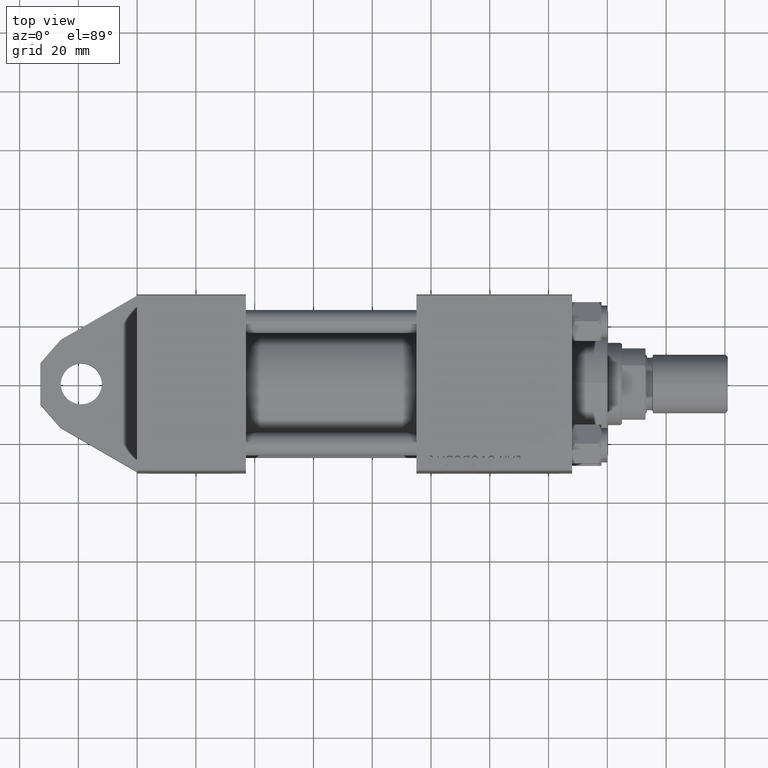
[diagram: clean part render]
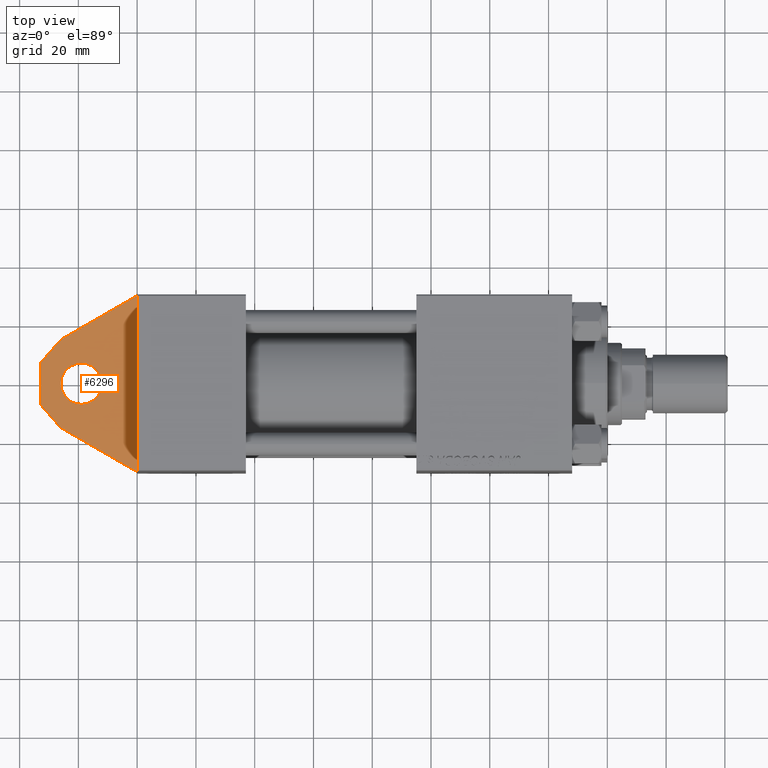
[diagram: same view with one face highlighted and labeled with its STEP entity id]
A machine part, top view. The second image highlights one B-rep face of the part: STEP entity #6296.
In plain terms, the highlighted planar face has unit normal (-0, 0, 1).
Its self-contained STEP definition (entity closure, byte-faithful):
#510 = VERTEX_POINT ( 'NONE', #8216 ) ;
#890 = CARTESIAN_POINT ( 'NONE',  ( 0.000000000000000000, 5.000000000000000000, 29.99999999999999289 ) ) ;
#2163 = CARTESIAN_POINT ( 'NONE',  ( -33.00000000000000000, 5.000000000000000000, -7.000000000000000000 ) ) ;
#2507 = VECTOR ( 'NONE', #37193, 1000.000000000000000 ) ;
#2791 = DIRECTION ( 'NONE',  ( -0.8660254037844361541, -0.000000000000000000, 0.5000000000000043299 ) ) ;
#2825 = EDGE_CURVE ( 'NONE', #34788, #14544, #12285, .T. ) ;
#3042 = FACE_OUTER_BOUND ( 'NONE', #33347, .T. ) ;
#3581 = ORIENTED_EDGE ( 'NONE', *, *, #18817, .T. ) ;
#4411 = EDGE_LOOP ( 'NONE', ( #15034, #29512 ) ) ;
#4566 = ORIENTED_EDGE ( 'NONE', *, *, #38158, .T. ) ;
#6296 = ADVANCED_FACE ( 'NONE', ( #13655, #3042 ), #20943, .T. ) ;
#6570 = CARTESIAN_POINT ( 'NONE',  ( -26.00000000000000355, 5.000000000000000000, -14.98889300106956135 ) ) ;
#7208 = CARTESIAN_POINT ( 'NONE',  ( -26.00000000000000355, 5.000000000000000000, 14.98889300106956135 ) ) ;
#8216 = CARTESIAN_POINT ( 'NONE',  ( -26.00000000000000355, 5.000000000000000000, 14.98889300106956135 ) ) ;
#8423 = LINE ( 'NONE', #11504, #33569 ) ;
#8767 = DIRECTION ( 'NONE',  ( 0.000000000000000000, 0.000000000000000000, 1.000000000000000000 ) ) ;
#8844 = CARTESIAN_POINT ( 'NONE',  ( -26.00000000000000355, 5.000000000000000000, -14.98889300106956135 ) ) ;
#8972 = CIRCLE ( 'NONE', #37534, 7.000000000000000000 ) ;
#9474 = AXIS2_PLACEMENT_3D ( 'NONE', #27118, #15364, #8767 ) ;
#9890 = CARTESIAN_POINT ( 'NONE',  ( 0.000000000000000000, 5.000000000000000000, 0.000000000000000000 ) ) ;
#11504 = CARTESIAN_POINT ( 'NONE',  ( 0.000000000000000000, 5.000000000000000000, 29.99999999999999289 ) ) ;
#12069 = VERTEX_POINT ( 'NONE', #8844 ) ;
#12285 = LINE ( 'NONE', #14870, #2507 ) ;
#13655 = FACE_BOUND ( 'NONE', #4411, .T. ) ;
#14039 = VECTOR ( 'NONE', #26789, 1000.000000000000000 ) ;
#14544 = VERTEX_POINT ( 'NONE', #32923 ) ;
#14870 = CARTESIAN_POINT ( 'NONE',  ( -33.00000000000000000, 5.000000000000000000, -7.000000000000000000 ) ) ;
#15034 = ORIENTED_EDGE ( 'NONE', *, *, #15098, .F. ) ;
#15098 = EDGE_CURVE ( 'NONE', #26618, #18065, #21484, .T. ) ;
#15364 = DIRECTION ( 'NONE',  ( 0.000000000000000000, 1.000000000000000000, 0.000000000000000000 ) ) ;
#16575 = DIRECTION ( 'NONE',  ( 0.000000000000000000, 1.000000000000000000, 0.000000000000000000 ) ) ;
#16891 = EDGE_CURVE ( 'NONE', #38821, #45541, #8423, .T. ) ;
#16935 = LINE ( 'NONE', #6570, #42606 ) ;
#17080 = EDGE_CURVE ( 'NONE', #510, #38821, #29081, .T. ) ;
#17567 = EDGE_CURVE ( 'NONE', #14544, #510, #43307, .T. ) ;
#17993 = ORIENTED_EDGE ( 'NONE', *, *, #2825, .T. ) ;
#18065 = VERTEX_POINT ( 'NONE', #22231 ) ;
#18154 = CARTESIAN_POINT ( 'NONE',  ( -33.00000000000000000, 5.000000000000000000, 7.000000000000000000 ) ) ;
#18817 = EDGE_CURVE ( 'NONE', #45541, #12069, #16935, .T. ) ;
#19948 = AXIS2_PLACEMENT_3D ( 'NONE', #9890, #34353, #27773 ) ;
#20064 = LINE ( 'NONE', #2163, #28722 ) ;
#20943 = PLANE ( 'NONE',  #19948 ) ;
#21484 = CIRCLE ( 'NONE', #9474, 7.000000000000000000 ) ;
#22231 = CARTESIAN_POINT ( 'NONE',  ( -19.00000000000000000, 5.000000000000000000, -7.000000000000000000 ) ) ;
#22409 = ORIENTED_EDGE ( 'NONE', *, *, #17080, .T. ) ;
#22592 = CARTESIAN_POINT ( 'NONE',  ( -19.00000000000000000, 5.000000000000000000, 7.000000000000000000 ) ) ;
#22779 = DIRECTION ( 'NONE',  ( 0.000000000000000000, 0.000000000000000000, -1.000000000000000000 ) ) ;
#23813 = VECTOR ( 'NONE', #32149, 999.9999999999998863 ) ;
#26618 = VERTEX_POINT ( 'NONE', #22592 ) ;
#26789 = DIRECTION ( 'NONE',  ( 0.6590226651366694055, 0.000000000000000000, 0.7521230795795068591 ) ) ;
#27118 = CARTESIAN_POINT ( 'NONE',  ( -19.00000000000000000, 5.000000000000000000, 0.000000000000000000 ) ) ;
#27773 = DIRECTION ( 'NONE',  ( 0.000000000000000000, -0.000000000000000000, 1.000000000000000000 ) ) ;
#28722 = VECTOR ( 'NONE', #32041, 1000.000000000000000 ) ;
#29081 = LINE ( 'NONE', #7208, #23813 ) ;
#29512 = ORIENTED_EDGE ( 'NONE', *, *, #43497, .F. ) ;
#31707 = CARTESIAN_POINT ( 'NONE',  ( -33.00000000000000000, 5.000000000000000000, -7.000000000000000000 ) ) ;
#32041 = DIRECTION ( 'NONE',  ( -0.6590226651366694055, -0.000000000000000000, 0.7521230795795068591 ) ) ;
#32149 = DIRECTION ( 'NONE',  ( 0.8660254037844363761, 0.000000000000000000, 0.5000000000000039968 ) ) ;
#32860 = CARTESIAN_POINT ( 'NONE',  ( 0.000000000000000000, 5.000000000000000000, -30.00000000000000711 ) ) ;
#32923 = CARTESIAN_POINT ( 'NONE',  ( -33.00000000000000000, 5.000000000000000000, 7.000000000000000000 ) ) ;
#33347 = EDGE_LOOP ( 'NONE', ( #35706, #22409, #35535, #3581, #4566, #17993 ) ) ;
#33569 = VECTOR ( 'NONE', #22779, 1000.000000000000000 ) ;
#34353 = DIRECTION ( 'NONE',  ( -0.000000000000000000, 1.000000000000000000, 0.000000000000000000 ) ) ;
#34788 = VERTEX_POINT ( 'NONE', #31707 ) ;
#35535 = ORIENTED_EDGE ( 'NONE', *, *, #16891, .T. ) ;
#35706 = ORIENTED_EDGE ( 'NONE', *, *, #17567, .T. ) ;
#37193 = DIRECTION ( 'NONE',  ( 0.000000000000000000, 0.000000000000000000, 1.000000000000000000 ) ) ;
#37259 = CARTESIAN_POINT ( 'NONE',  ( -19.00000000000000000, 5.000000000000000000, 0.000000000000000000 ) ) ;
#37534 = AXIS2_PLACEMENT_3D ( 'NONE', #37259, #16575, #45245 ) ;
#38158 = EDGE_CURVE ( 'NONE', #12069, #34788, #20064, .T. ) ;
#38821 = VERTEX_POINT ( 'NONE', #890 ) ;
#42606 = VECTOR ( 'NONE', #2791, 999.9999999999998863 ) ;
#43307 = LINE ( 'NONE', #18154, #14039 ) ;
#43497 = EDGE_CURVE ( 'NONE', #18065, #26618, #8972, .T. ) ;
#45245 = DIRECTION ( 'NONE',  ( 0.000000000000000000, 0.000000000000000000, 1.000000000000000000 ) ) ;
#45541 = VERTEX_POINT ( 'NONE', #32860 ) ;